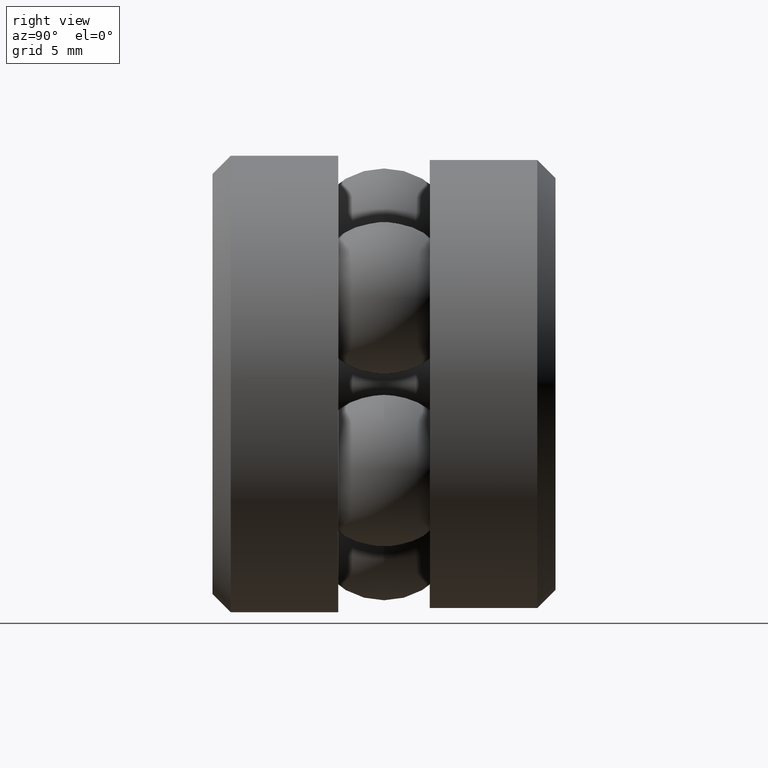
[diagram: clean part render]
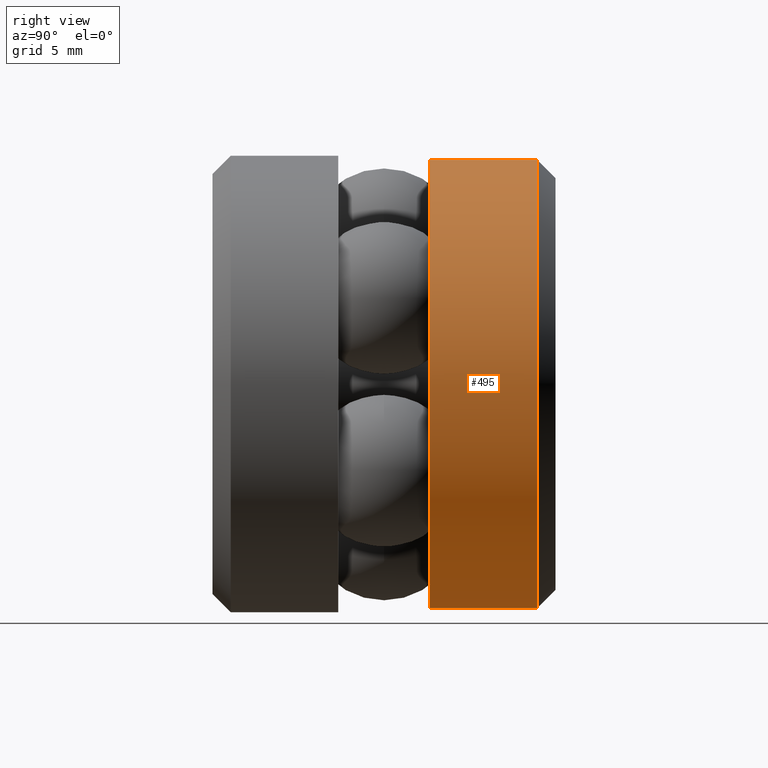
[diagram: same view with one face highlighted and labeled with its STEP entity id]
A machine part, right view. The second image highlights one B-rep face of the part: STEP entity #495.
In plain terms, the highlighted cylindrical surface (bore or boss wall) has radius 9.3472 mm, axis along (-0, 1, -0).
Its self-contained STEP definition (entity closure, byte-faithful):
#24 = DIRECTION ( 'NONE',  ( 0.0000000000000000000, 0.0000000000000000000, 1.000000000000000000 ) ) ;
#41 = CARTESIAN_POINT ( 'NONE',  ( 0.0000000000000000000, 0.5324999999999996400, 0.0000000000000000000 ) ) ;
#56 = CYLINDRICAL_SURFACE ( 'NONE', #337, 0.3679999999999999900 ) ;
#67 = EDGE_LOOP ( 'NONE', ( #150 ) ) ;
#75 = DIRECTION ( 'NONE',  ( 0.0000000000000000000, 0.0000000000000000000, 1.000000000000000000 ) ) ;
#93 = FACE_OUTER_BOUND ( 'NONE', #67, .T. ) ;
#97 = VERTEX_POINT ( 'NONE', #261 ) ;
#131 = EDGE_LOOP ( 'NONE', ( #417 ) ) ;
#150 = ORIENTED_EDGE ( 'NONE', *, *, #511, .F. ) ;
#167 = CIRCLE ( 'NONE', #306, 0.3679999999999999900 ) ;
#210 = VERTEX_POINT ( 'NONE', #218 ) ;
#218 = CARTESIAN_POINT ( 'NONE',  ( 0.0000000000000000000, 0.3562500000000000100, 0.3679999999999999900 ) ) ;
#220 = AXIS2_PLACEMENT_3D ( 'NONE', #269, #344, #538 ) ;
#261 = CARTESIAN_POINT ( 'NONE',  ( 0.0000000000000000000, 0.5324999999999996400, 0.3679999999999999900 ) ) ;
#269 = CARTESIAN_POINT ( 'NONE',  ( 0.0000000000000000000, 0.3562500000000000100, 0.0000000000000000000 ) ) ;
#291 = CARTESIAN_POINT ( 'NONE',  ( 0.0000000000000000000, 0.0000000000000000000, 0.0000000000000000000 ) ) ;
#306 = AXIS2_PLACEMENT_3D ( 'NONE', #41, #496, #24 ) ;
#321 = CIRCLE ( 'NONE', #220, 0.3679999999999999900 ) ;
#337 = AXIS2_PLACEMENT_3D ( 'NONE', #291, #471, #75 ) ;
#344 = DIRECTION ( 'NONE',  ( -0.0000000000000000000, 1.000000000000000000, -0.0000000000000000000 ) ) ;
#393 = FACE_OUTER_BOUND ( 'NONE', #131, .T. ) ;
#417 = ORIENTED_EDGE ( 'NONE', *, *, #485, .T. ) ;
#471 = DIRECTION ( 'NONE',  ( -0.0000000000000000000, 1.000000000000000000, -0.0000000000000000000 ) ) ;
#485 = EDGE_CURVE ( 'NONE', #210, #210, #321, .T. ) ;
#495 = ADVANCED_FACE ( 'NONE', ( #393, #93 ), #56, .T. ) ;
#496 = DIRECTION ( 'NONE',  ( -0.0000000000000000000, 1.000000000000000000, -0.0000000000000000000 ) ) ;
#511 = EDGE_CURVE ( 'NONE', #97, #97, #167, .T. ) ;
#538 = DIRECTION ( 'NONE',  ( 0.0000000000000000000, 0.0000000000000000000, 1.000000000000000000 ) ) ;